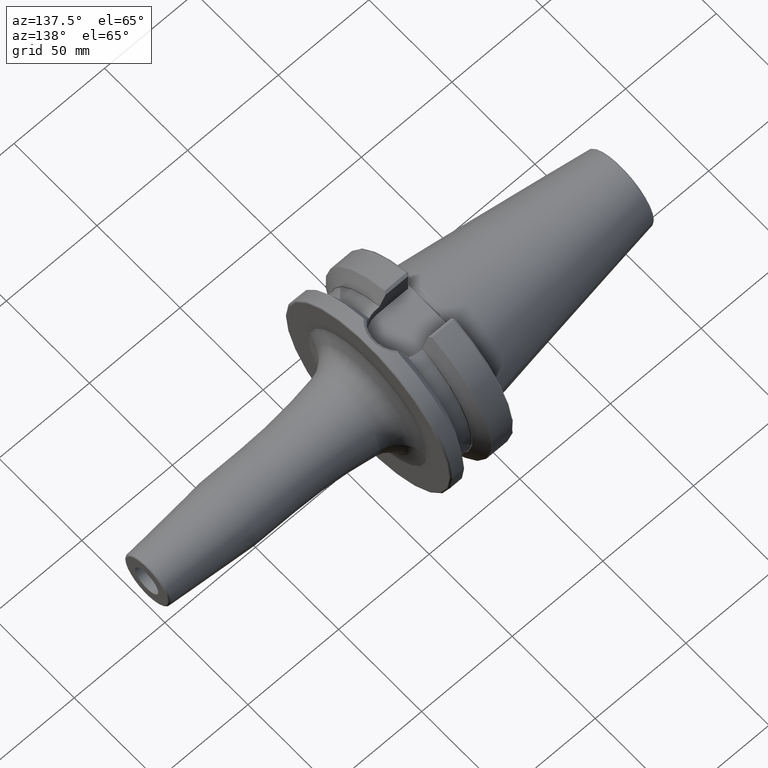
[diagram: clean part render]
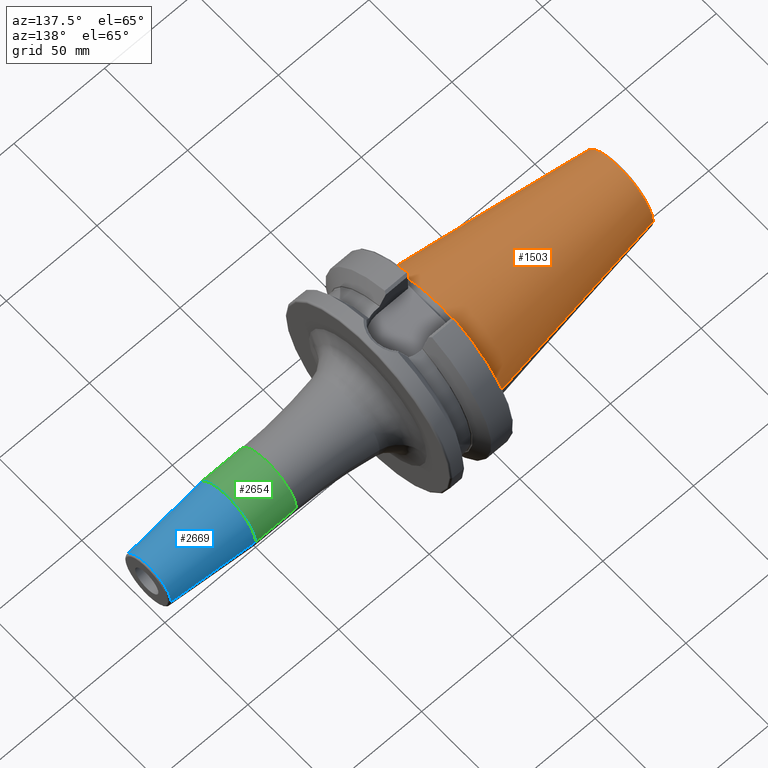
[diagram: same view with three faces highlighted in distinct colors, each labeled with its STEP entity id]
A machine part, auxiliary view with three faces highlighted in distinct colors.
Their STEP definitions:

[orange] entity #1503 — the highlighted conical surface has half-angle 8.298 deg.
#37=CARTESIAN_POINT('',(-1.009443186692E2,0.E0,0.E0));
#38=DIRECTION('',(1.E0,0.E0,0.E0));
#39=DIRECTION('',(0.E0,1.E0,0.E0));
#40=AXIS2_PLACEMENT_3D('',#37,#38,#39);
#42=CARTESIAN_POINT('',(-6.191906162850E-1,0.E0,0.E0));
#43=DIRECTION('',(1.E0,0.E0,0.E0));
#44=DIRECTION('',(0.E0,1.E0,0.E0));
#45=AXIS2_PLACEMENT_3D('',#42,#43,#44);
#47=DIRECTION('',(-9.895312636440E-1,-1.443186691705E-1,0.E0));
#48=VECTOR('',#47,1.013865167670E2);
#49=CARTESIAN_POINT('',(-6.191906162849E-1,3.483469384295E1,0.E0));
#50=LINE('',#49,#48);
#51=DIRECTION('',(-9.895312636440E-1,1.443186691705E-1,0.E0));
#52=VECTOR('',#51,1.013865167670E2);
#53=CARTESIAN_POINT('',(-6.191906162849E-1,-3.483469384295E1,0.E0));
#54=LINE('',#53,#52);
#1188=CARTESIAN_POINT('',(-1.009443186692E2,2.020272667130E1,0.E0));
#1190=VERTEX_POINT('',#1188);
#1192=CARTESIAN_POINT('',(-1.009443186692E2,-2.020272667130E1,0.E0));
#1194=VERTEX_POINT('',#1192);
#1407=CARTESIAN_POINT('',(-6.191906162849E-1,3.483469384295E1,0.E0));
#1408=VERTEX_POINT('',#1407);
#1409=CARTESIAN_POINT('',(-6.191906162849E-1,-3.483469384295E1,0.E0));
#1410=VERTEX_POINT('',#1409);
#1489=CARTESIAN_POINT('',(-5.078175464273E1,0.E0,0.E0));
#1490=DIRECTION('',(1.E0,0.E0,0.E0));
#1491=DIRECTION('',(0.E0,-1.E0,0.E0));
#1492=AXIS2_PLACEMENT_3D('',#1489,#1490,#1491);
#1493=CONICAL_SURFACE('',#1492,2.751871025712E1,8.297826828206E0);
#1495=ORIENTED_EDGE('',*,*,#1494,.F.);
#1497=ORIENTED_EDGE('',*,*,#1496,.T.);
#1499=ORIENTED_EDGE('',*,*,#1498,.T.);
#1500=ORIENTED_EDGE('',*,*,#1482,.F.);
#1501=EDGE_LOOP('',(#1495,#1497,#1499,#1500));
#1502=FACE_OUTER_BOUND('',#1501,.F.);
#1503=ADVANCED_FACE('',(#1502),#1493,.T.);
#41=CIRCLE('',#40,2.020272667130E1);
#46=CIRCLE('',#45,3.483469384295E1);
#1482=EDGE_CURVE('',#1190,#1194,#41,.T.);
#1494=EDGE_CURVE('',#1408,#1190,#50,.T.);
#1496=EDGE_CURVE('',#1408,#1410,#46,.T.);
#1498=EDGE_CURVE('',#1410,#1194,#54,.T.);

[blue] entity #2669 — the highlighted conical surface has half-angle 4.5 deg.
#897=CARTESIAN_POINT('',(1.155282834234E2,0.E0,0.E0));
#898=DIRECTION('',(1.E0,0.E0,0.E0));
#899=DIRECTION('',(0.E0,1.E0,0.E0));
#900=AXIS2_PLACEMENT_3D('',#897,#898,#899);
#902=CARTESIAN_POINT('',(1.590784590957E2,0.E0,0.E0));
#903=DIRECTION('',(-1.E0,0.E0,0.E0));
#904=DIRECTION('',(0.E0,-1.E0,0.E0));
#905=AXIS2_PLACEMENT_3D('',#902,#903,#904);
#922=DIRECTION('',(-9.969173337331E-1,7.845909572785E-2,7.699797930834E-14));
#923=VECTOR('',#922,4.368484145948E1);
#924=CARTESIAN_POINT('',(1.590784590957E2,1.357252684207E1,
-3.361562619226E-12));
#925=LINE('',#924,#923);
#926=DIRECTION('',(-9.969173337331E-1,-7.845909572785E-2,-7.691968945458E-14));
#927=VECTOR('',#926,4.368484145948E1);
#928=CARTESIAN_POINT('',(1.590784590957E2,-1.357252684207E1,
3.358142539377E-12));
#929=LINE('',#928,#927);
#1411=CARTESIAN_POINT('',(1.155282834234E2,1.7E1,0.E0));
#1412=CARTESIAN_POINT('',(1.155282834234E2,-1.7E1,0.E0));
#1413=VERTEX_POINT('',#1411);
#1414=VERTEX_POINT('',#1412);
#1423=CARTESIAN_POINT('',(1.590784590957E2,1.357252684207E1,0.E0));
#1424=CARTESIAN_POINT('',(1.590784590957E2,-1.357252684207E1,0.E0));
#1425=VERTEX_POINT('',#1423);
#1426=VERTEX_POINT('',#1424);
#2655=CARTESIAN_POINT('',(1.373033712596E2,0.E0,0.E0));
#2656=DIRECTION('',(-1.E0,0.E0,0.E0));
#2657=DIRECTION('',(0.E0,1.E0,0.E0));
#2658=AXIS2_PLACEMENT_3D('',#2655,#2656,#2657);
#2659=CONICAL_SURFACE('',#2658,1.528626342104E1,4.5E0);
#2661=ORIENTED_EDGE('',*,*,#2660,.F.);
#2663=ORIENTED_EDGE('',*,*,#2662,.T.);
#2664=ORIENTED_EDGE('',*,*,#2649,.F.);
#2666=ORIENTED_EDGE('',*,*,#2665,.F.);
#2667=EDGE_LOOP('',(#2661,#2663,#2664,#2666));
#2668=FACE_OUTER_BOUND('',#2667,.F.);
#2669=ADVANCED_FACE('',(#2668),#2659,.T.);
#901=CIRCLE('',#900,1.7E1);
#906=CIRCLE('',#905,1.357252684207E1);
#2649=EDGE_CURVE('',#1413,#1414,#901,.T.);
#2660=EDGE_CURVE('',#1426,#1425,#906,.T.);
#2662=EDGE_CURVE('',#1426,#1414,#929,.T.);
#2665=EDGE_CURVE('',#1425,#1413,#925,.T.);

[green] entity #2654 — the highlighted cylindrical surface (partial cylindrical patch) has radius 17 mm, axis along (1, 0, 0).
#879=DIRECTION('',(-1.E0,0.E0,0.E0));
#880=VECTOR('',#879,2.252828342339E1);
#881=CARTESIAN_POINT('',(1.155282834234E2,-1.7E1,0.E0));
#882=LINE('',#881,#880);
#888=DIRECTION('',(-1.E0,0.E0,0.E0));
#889=VECTOR('',#888,2.252828342339E1);
#890=CARTESIAN_POINT('',(1.155282834234E2,1.7E1,0.E0));
#891=LINE('',#890,#889);
#892=CARTESIAN_POINT('',(9.3E1,0.E0,0.E0));
#893=DIRECTION('',(1.E0,0.E0,0.E0));
#894=DIRECTION('',(0.E0,1.E0,0.E0));
#895=AXIS2_PLACEMENT_3D('',#892,#893,#894);
#897=CARTESIAN_POINT('',(1.155282834234E2,0.E0,0.E0));
#898=DIRECTION('',(1.E0,0.E0,0.E0));
#899=DIRECTION('',(0.E0,1.E0,0.E0));
#900=AXIS2_PLACEMENT_3D('',#897,#898,#899);
#1411=CARTESIAN_POINT('',(1.155282834234E2,1.7E1,0.E0));
#1412=CARTESIAN_POINT('',(1.155282834234E2,-1.7E1,0.E0));
#1413=VERTEX_POINT('',#1411);
#1414=VERTEX_POINT('',#1412);
#1431=CARTESIAN_POINT('',(9.3E1,1.7E1,0.E0));
#1432=CARTESIAN_POINT('',(9.3E1,-1.7E1,0.E0));
#1433=VERTEX_POINT('',#1431);
#1434=VERTEX_POINT('',#1432);
#2642=CARTESIAN_POINT('',(3.19E1,0.E0,0.E0));
#2643=DIRECTION('',(1.E0,0.E0,0.E0));
#2644=DIRECTION('',(0.E0,-1.E0,0.E0));
#2645=AXIS2_PLACEMENT_3D('',#2642,#2643,#2644);
#2646=CYLINDRICAL_SURFACE('',#2645,1.7E1);
#2647=ORIENTED_EDGE('',*,*,#2607,.F.);
#2648=ORIENTED_EDGE('',*,*,#2637,.F.);
#2650=ORIENTED_EDGE('',*,*,#2649,.T.);
#2651=ORIENTED_EDGE('',*,*,#2633,.T.);
#2652=EDGE_LOOP('',(#2647,#2648,#2650,#2651));
#2653=FACE_OUTER_BOUND('',#2652,.F.);
#2654=ADVANCED_FACE('',(#2653),#2646,.T.);
#896=CIRCLE('',#895,1.7E1);
#901=CIRCLE('',#900,1.7E1);
#2607=EDGE_CURVE('',#1433,#1434,#896,.T.);
#2633=EDGE_CURVE('',#1414,#1434,#882,.T.);
#2637=EDGE_CURVE('',#1413,#1433,#891,.T.);
#2649=EDGE_CURVE('',#1413,#1414,#901,.T.);